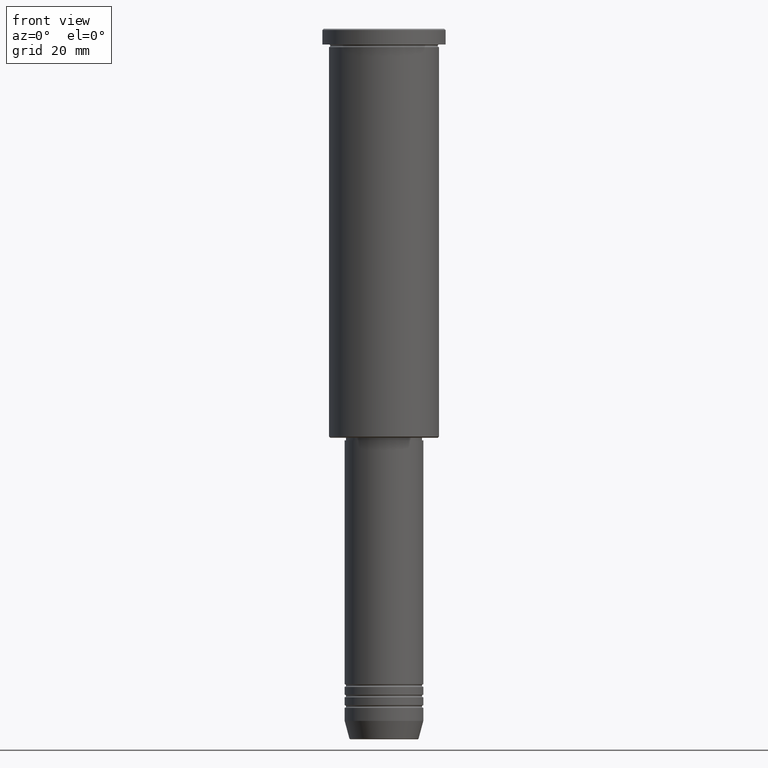
[diagram: clean part render]
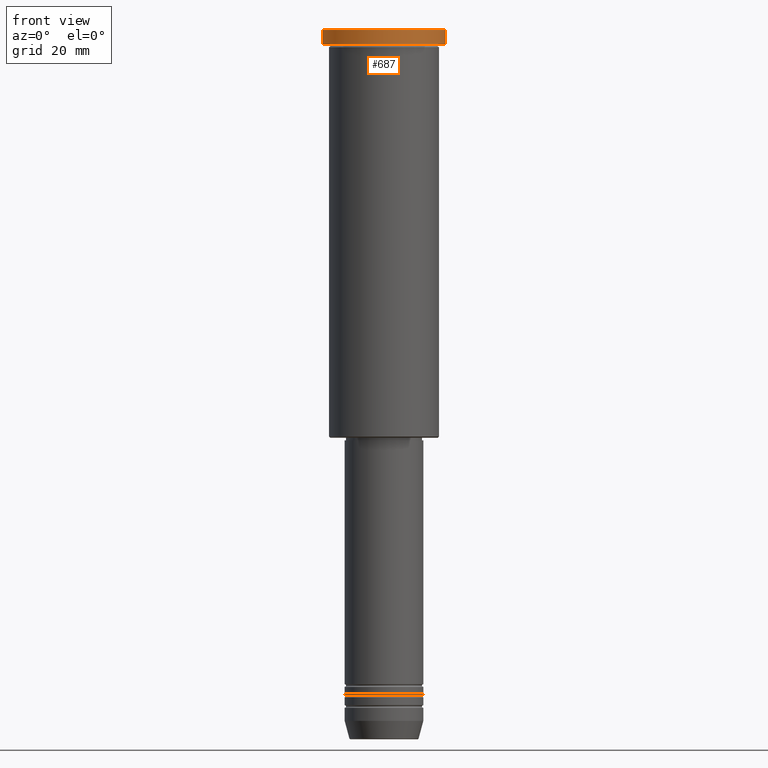
[diagram: same view with one face highlighted and labeled with its STEP entity id]
A machine part, front view. The second image highlights one B-rep face of the part: STEP entity #687.
In plain terms, the highlighted cylindrical surface (partial cylindrical patch) has radius 23.5 mm, axis along (-0, -0, 1).
Its self-contained STEP definition (entity closure, byte-faithful):
#32 = ORIENTED_EDGE ( 'NONE', *, *, #202, .T. ) ;
#125 = DIRECTION ( 'NONE',  ( -0.000000000000000000, -0.000000000000000000, 1.000000000000000000 ) ) ;
#162 = ORIENTED_EDGE ( 'NONE', *, *, #586, .T. ) ;
#202 = EDGE_CURVE ( 'NONE', #709, #317, #879, .T. ) ;
#237 = DIRECTION ( 'NONE',  ( 1.000000000000000000, 0.000000000000000000, 0.000000000000000000 ) ) ;
#240 = CARTESIAN_POINT ( 'NONE',  ( 0.000000000000000000, 0.000000000000000000, 0.000000000000000000 ) ) ;
#241 = ORIENTED_EDGE ( 'NONE', *, *, #1154, .F. ) ;
#272 = AXIS2_PLACEMENT_3D ( 'NONE', #240, #970, #409 ) ;
#303 = DIRECTION ( 'NONE',  ( -0.000000000000000000, -0.000000000000000000, 1.000000000000000000 ) ) ;
#317 = VERTEX_POINT ( 'NONE', #874 ) ;
#324 = DIRECTION ( 'NONE',  ( -0.000000000000000000, -0.000000000000000000, 1.000000000000000000 ) ) ;
#328 = DIRECTION ( 'NONE',  ( 1.000000000000000000, 0.000000000000000000, 0.000000000000000000 ) ) ;
#347 = EDGE_CURVE ( 'NONE', #1159, #709, #904, .T. ) ;
#409 = DIRECTION ( 'NONE',  ( 1.000000000000000000, 0.000000000000000000, 0.000000000000000000 ) ) ;
#419 = FACE_OUTER_BOUND ( 'NONE', #1070, .T. ) ;
#433 = AXIS2_PLACEMENT_3D ( 'NONE', #1142, #1057, #237 ) ;
#518 = LINE ( 'NONE', #872, #1056 ) ;
#525 = CARTESIAN_POINT ( 'NONE',  ( 23.50000000000000000, 0.000000000000000000, 0.000000000000000000 ) ) ;
#547 = VECTOR ( 'NONE', #303, 1000.000000000000000 ) ;
#566 = CARTESIAN_POINT ( 'NONE',  ( -23.50000000000000000, 2.877919977996280320E-15, -0.5000000000000004441 ) ) ;
#586 = EDGE_CURVE ( 'NONE', #317, #1050, #701, .T. ) ;
#624 = AXIS2_PLACEMENT_3D ( 'NONE', #947, #125, #328 ) ;
#687 = ADVANCED_FACE ( 'NONE', ( #419 ), #704, .T. ) ;
#701 = CIRCLE ( 'NONE', #433, 23.50000000000000000 ) ;
#704 = CYLINDRICAL_SURFACE ( 'NONE', #272, 23.50000000000000000 ) ;
#709 = VERTEX_POINT ( 'NONE', #859 ) ;
#859 = CARTESIAN_POINT ( 'NONE',  ( 23.50000000000000000, 0.000000000000000000, -5.999999999999993783 ) ) ;
#872 = CARTESIAN_POINT ( 'NONE',  ( -23.50000000000000000, 2.877919977996280320E-15, 0.000000000000000000 ) ) ;
#874 = CARTESIAN_POINT ( 'NONE',  ( 23.50000000000000000, 0.000000000000000000, -0.5000000000000004441 ) ) ;
#879 = LINE ( 'NONE', #525, #547 ) ;
#904 = CIRCLE ( 'NONE', #624, 23.50000000000000000 ) ;
#947 = CARTESIAN_POINT ( 'NONE',  ( 0.000000000000000000, 0.000000000000000000, -5.999999999999993783 ) ) ;
#970 = DIRECTION ( 'NONE',  ( -0.000000000000000000, -0.000000000000000000, 1.000000000000000000 ) ) ;
#1003 = ORIENTED_EDGE ( 'NONE', *, *, #347, .T. ) ;
#1050 = VERTEX_POINT ( 'NONE', #566 ) ;
#1056 = VECTOR ( 'NONE', #324, 1000.000000000000000 ) ;
#1057 = DIRECTION ( 'NONE',  ( 0.000000000000000000, 0.000000000000000000, -1.000000000000000000 ) ) ;
#1059 = CARTESIAN_POINT ( 'NONE',  ( -23.50000000000000000, 2.877919977996280320E-15, -5.999999999999993783 ) ) ;
#1070 = EDGE_LOOP ( 'NONE', ( #241, #1003, #32, #162 ) ) ;
#1142 = CARTESIAN_POINT ( 'NONE',  ( 0.000000000000000000, 0.000000000000000000, -0.5000000000000004441 ) ) ;
#1154 = EDGE_CURVE ( 'NONE', #1159, #1050, #518, .T. ) ;
#1159 = VERTEX_POINT ( 'NONE', #1059 ) ;